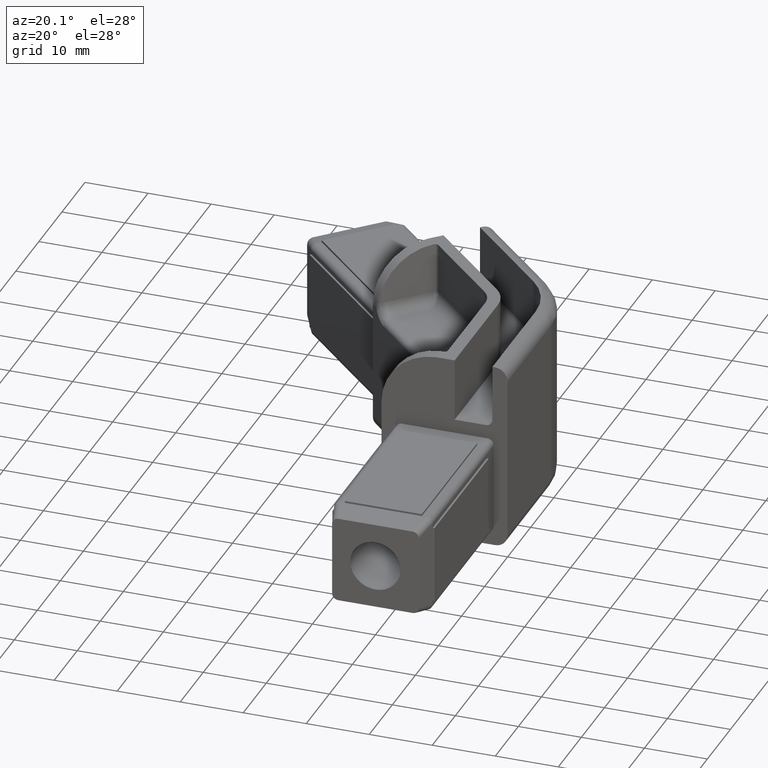
[diagram: clean part render]
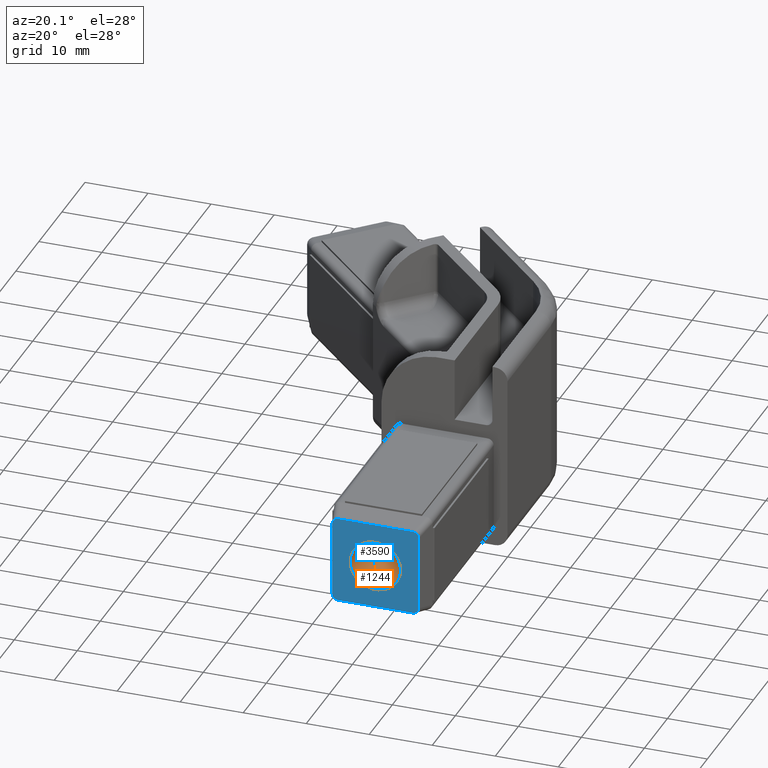
[diagram: same view with the hole feature highlighted: cylindrical wall and planar end face, labeled with their STEP entity ids]
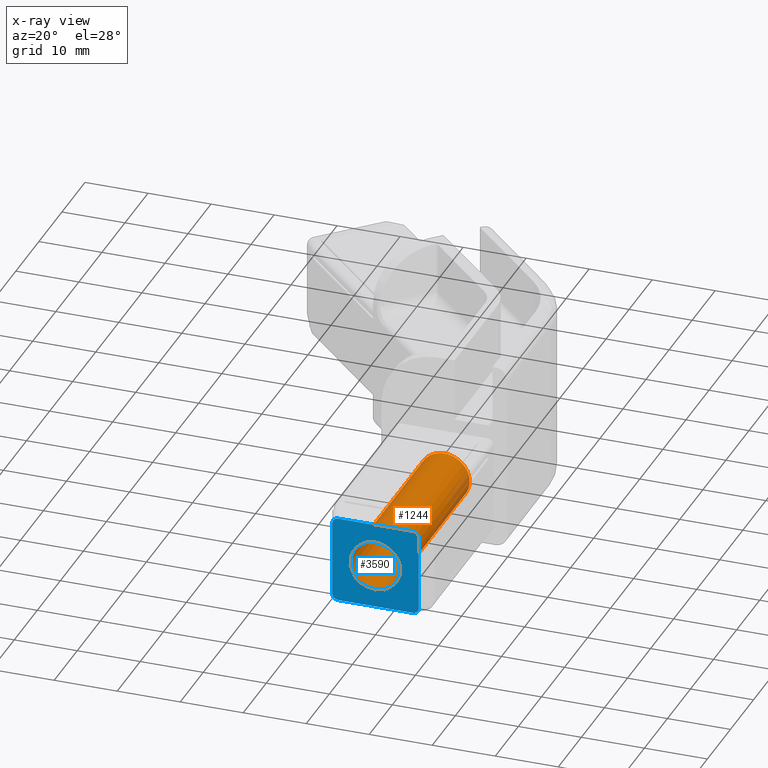
[diagram: x-ray of the same camera — body ghosted, the hole faces saturated]
A machine part, auxiliary view. The highlighted faces form one hole feature of diameter 8 mm: the cylindrical wall (entity #1244, orange) and its adjacent planar end face (entity #3590, blue) — they share a circular edge in the B-rep.
The next image is the same camera in x-ray (body ghosted, the hole faces saturated) — the bore reads through the body.
Wall:
#1194=CARTESIAN_POINT('',(0.0,0.0,0.0));
#1195=DIRECTION('',(0.0,-1.0,0.0));
#1196=DIRECTION('',(1.0,0.0,1.224647E-016));
#1197=AXIS2_PLACEMENT_3D('',#1194,#1195,#1196);
#1198=CYLINDRICAL_SURFACE('',#1197,4.0);
#1199=CARTESIAN_POINT('',(-4.0,29.984271247463042,-4.898587E-016));
#1200=VERTEX_POINT('',#1199);
#1201=CARTESIAN_POINT('',(4.0,29.984271247463042,4.898587E-016));
#1202=VERTEX_POINT('',#1201);
#1203=CARTESIAN_POINT('',(0.0,29.984271247463042,0.0));
#1204=DIRECTION('',(0.0,-1.0,0.0));
#1205=DIRECTION('',(1.0,0.0,1.224647E-016));
#1206=AXIS2_PLACEMENT_3D('',#1203,#1204,#1205);
#1207=CIRCLE('',#1206,4.0);
#1208=EDGE_CURVE('',#1200,#1202,#1207,.T.);
#1209=ORIENTED_EDGE('',*,*,#1208,.F.);
#1210=CARTESIAN_POINT('',(0.0,29.984271247463042,0.0));
#1211=DIRECTION('',(0.0,-1.0,0.0));
#1212=DIRECTION('',(1.0,0.0,1.224647E-016));
#1213=AXIS2_PLACEMENT_3D('',#1210,#1211,#1212);
#1214=CIRCLE('',#1213,4.0);
#1215=EDGE_CURVE('',#1202,#1200,#1214,.T.);
#1216=ORIENTED_EDGE('',*,*,#1215,.F.);
#1217=CARTESIAN_POINT('',(4.0,0.0,4.898587E-016));
#1218=VERTEX_POINT('',#1217);
#1219=CARTESIAN_POINT('',(4.0,0.0,4.898587E-016));
#1220=DIRECTION('',(0.0,1.0,0.0));
#1221=VECTOR('',#1220,29.984271247463045);
#1222=LINE('',#1219,#1221);
#1223=EDGE_CURVE('',#1218,#1202,#1222,.T.);
#1224=ORIENTED_EDGE('',*,*,#1223,.F.);
#1225=CARTESIAN_POINT('',(-4.0,0.0,-4.898587E-016));
#1226=VERTEX_POINT('',#1225);
#1227=CARTESIAN_POINT('',(0.0,0.0,0.0));
#1228=DIRECTION('',(0.0,-1.0,0.0));
#1229=DIRECTION('',(1.0,0.0,1.224647E-016));
#1230=AXIS2_PLACEMENT_3D('',#1227,#1228,#1229);
#1231=CIRCLE('',#1230,4.0);
#1232=EDGE_CURVE('',#1218,#1226,#1231,.T.);
#1233=ORIENTED_EDGE('',*,*,#1232,.T.);
#1234=CARTESIAN_POINT('',(0.0,0.0,0.0));
#1235=DIRECTION('',(0.0,-1.0,0.0));
#1236=DIRECTION('',(1.0,0.0,1.224647E-016));
#1237=AXIS2_PLACEMENT_3D('',#1234,#1235,#1236);
#1238=CIRCLE('',#1237,4.0);
#1239=EDGE_CURVE('',#1226,#1218,#1238,.T.);
#1240=ORIENTED_EDGE('',*,*,#1239,.T.);
#1241=ORIENTED_EDGE('',*,*,#1223,.T.);
#1242=EDGE_LOOP('',(#1209,#1216,#1224,#1233,#1240,#1241));
#1243=FACE_OUTER_BOUND('',#1242,.T.);
#1244=ADVANCED_FACE('',(#1243),#1198,.F.);
End face:
#1217=CARTESIAN_POINT('',(4.0,0.0,4.898587E-016));
#1218=VERTEX_POINT('',#1217);
#1225=CARTESIAN_POINT('',(-4.0,0.0,-4.898587E-016));
#1226=VERTEX_POINT('',#1225);
#1227=CARTESIAN_POINT('',(0.0,0.0,0.0));
#1228=DIRECTION('',(0.0,-1.0,0.0));
#1229=DIRECTION('',(1.0,0.0,1.224647E-016));
#1230=AXIS2_PLACEMENT_3D('',#1227,#1228,#1229);
#1231=CIRCLE('',#1230,4.0);
#1232=EDGE_CURVE('',#1218,#1226,#1231,.T.);
#1234=CARTESIAN_POINT('',(0.0,0.0,0.0));
#1235=DIRECTION('',(0.0,-1.0,0.0));
#1236=DIRECTION('',(1.0,0.0,1.224647E-016));
#1237=AXIS2_PLACEMENT_3D('',#1234,#1235,#1236);
#1238=CIRCLE('',#1237,4.0);
#1239=EDGE_CURVE('',#1226,#1218,#1238,.T.);
#3511=CARTESIAN_POINT('',(-6.870190528383318,0.0,-7.800000000000254));
#3512=DIRECTION('',(0.0,-1.0,0.0));
#3513=DIRECTION('',(1.0,0.0,0.0));
#3514=AXIS2_PLACEMENT_3D('',#3511,#3512,#3513);
#3515=PLANE('',#3514);
#3516=CARTESIAN_POINT('',(-5.904264700566727,0.0,-6.870190548897043));
#3517=VERTEX_POINT('',#3516);
#3518=CARTESIAN_POINT('',(-6.870190526855594,-5.701935E-009,-5.904264721080154));
#3519=VERTEX_POINT('',#3518);
#3520=CARTESIAN_POINT('',(-5.834914347973380,0.0,-5.834914370124481));
#3521=DIRECTION('',(0.0,1.0,0.0));
#3522=DIRECTION('',(0.707106789534723,0.0,0.707106772838372));
#3523=AXIS2_PLACEMENT_3D('',#3520,#3521,#3522);
#3524=ELLIPSE('',#3523,1.069389328569541,1.000000000000000);
#3525=EDGE_CURVE('',#3517,#3519,#3524,.T.);
#3526=ORIENTED_EDGE('',*,*,#3525,.F.);
#3527=CARTESIAN_POINT('',(5.904264700566047,0.0,-6.870190548897042));
#3528=VERTEX_POINT('',#3527);
#3529=CARTESIAN_POINT('',(-5.904264700566727,0.0,-6.870190548897043));
#3530=DIRECTION('',(1.0,0.0,0.0));
#3531=VECTOR('',#3530,11.808529401132773);
#3532=LINE('',#3529,#3531);
#3533=EDGE_CURVE('',#3517,#3528,#3532,.T.);
#3534=ORIENTED_EDGE('',*,*,#3533,.T.);
#3535=CARTESIAN_POINT('',(6.870190526855141,-5.701985E-009,-5.904264721080152));
#3536=VERTEX_POINT('',#3535);
#3537=CARTESIAN_POINT('',(5.834914347972927,0.0,-5.834914370124493));
#3538=DIRECTION('',(0.0,1.0,0.0));
#3539=DIRECTION('',(-0.707106789534817,0.0,0.707106772838278));
#3540=AXIS2_PLACEMENT_3D('',#3537,#3538,#3539);
#3541=ELLIPSE('',#3540,1.069389328569603,1.000000000000042);
#3542=EDGE_CURVE('',#3536,#3528,#3541,.T.);
#3543=ORIENTED_EDGE('',*,*,#3542,.F.);
#3544=CARTESIAN_POINT('',(6.870190528383090,0.0,5.904264718571811));
#3545=VERTEX_POINT('',#3544);
#3546=CARTESIAN_POINT('',(6.870190528383092,0.0,-5.904264721080150));
#3547=DIRECTION('',(0.0,0.0,1.0));
#3548=VECTOR('',#3547,11.808529439651963);
#3549=LINE('',#3546,#3548);
#3550=EDGE_CURVE('',#3536,#3545,#3549,.T.);
#3551=ORIENTED_EDGE('',*,*,#3550,.T.);
#3552=CARTESIAN_POINT('',(5.904264702093996,-1.157936E-009,6.870190544550597));
#3553=VERTEX_POINT('',#3552);
#3554=CARTESIAN_POINT('',(5.834914347972927,0.0,5.834914364118221));
#3555=DIRECTION('',(0.0,1.0,0.0));
#3556=DIRECTION('',(0.707106779491210,0.0,0.707106782881885));
#3557=AXIS2_PLACEMENT_3D('',#3554,#3555,#3556);
#3558=ELLIPSE('',#3557,1.069389330476797,1.000000000000000);
#3559=EDGE_CURVE('',#3553,#3545,#3558,.T.);
#3560=ORIENTED_EDGE('',*,*,#3559,.F.);
#3561=CARTESIAN_POINT('',(-5.904264702094225,-1.157986E-009,6.870190544550581));
#3562=VERTEX_POINT('',#3561);
#3563=CARTESIAN_POINT('',(-5.904264702094225,0.0,6.870190544860860));
#3564=DIRECTION('',(1.0,0.0,0.0));
#3565=VECTOR('',#3564,11.808529404188221);
#3566=LINE('',#3563,#3565);
#3567=EDGE_CURVE('',#3562,#3553,#3566,.T.);
#3568=ORIENTED_EDGE('',*,*,#3567,.F.);
#3569=CARTESIAN_POINT('',(-6.870190528383319,0.0,5.904264718571795));
#3570=VERTEX_POINT('',#3569);
#3571=CARTESIAN_POINT('',(-5.834914347973156,0.0,5.834914364118219));
#3572=DIRECTION('',(0.0,-1.0,0.0));
#3573=DIRECTION('',(-0.707106779491145,0.0,0.707106782881950));
#3574=AXIS2_PLACEMENT_3D('',#3571,#3572,#3573);
#3575=ELLIPSE('',#3574,1.069389330476783,0.999999999999999);
#3576=EDGE_CURVE('',#3562,#3570,#3575,.T.);
#3577=ORIENTED_EDGE('',*,*,#3576,.T.);
#3578=CARTESIAN_POINT('',(-6.870190528383318,0.0,-5.904264721080151));
#3579=DIRECTION('',(0.0,0.0,1.0));
#3580=VECTOR('',#3579,11.808529439651949);
#3581=LINE('',#3578,#3580);
#3582=EDGE_CURVE('',#3519,#3570,#3581,.T.);
#3583=ORIENTED_EDGE('',*,*,#3582,.F.);
#3584=EDGE_LOOP('',(#3526,#3534,#3543,#3551,#3560,#3568,#3577,#3583));
#3585=FACE_OUTER_BOUND('',#3584,.T.);
#3586=ORIENTED_EDGE('',*,*,#1239,.F.);
#3587=ORIENTED_EDGE('',*,*,#1232,.F.);
#3588=EDGE_LOOP('',(#3586,#3587));
#3589=FACE_BOUND('',#3588,.T.);
#3590=ADVANCED_FACE('',(#3585,#3589),#3515,.T.);